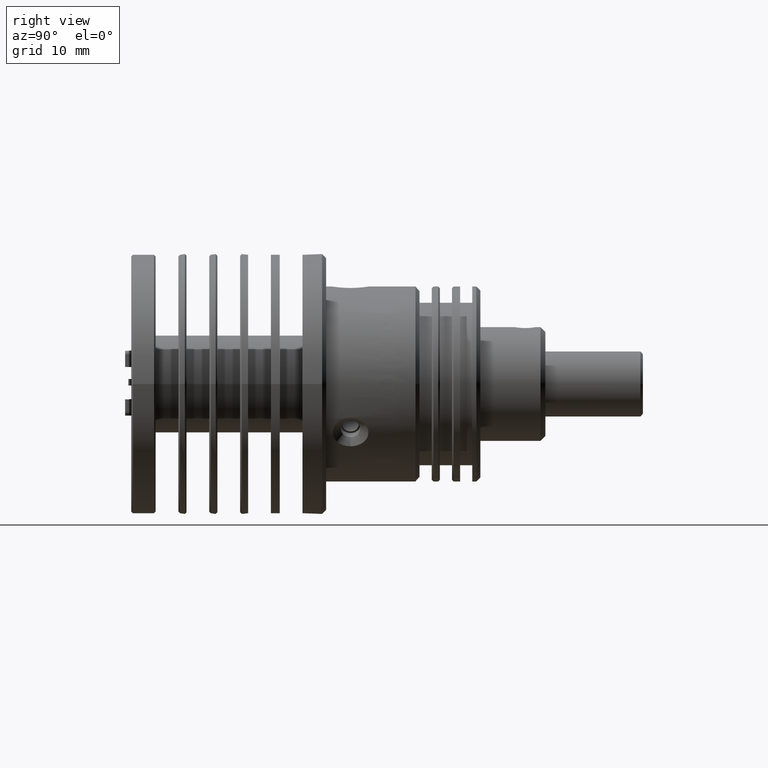
[diagram: clean part render]
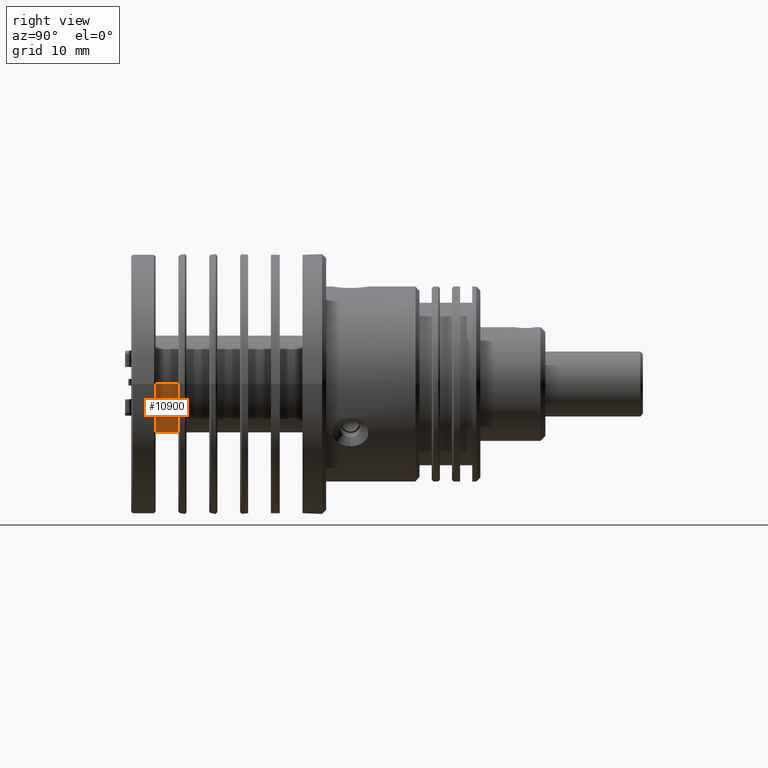
[diagram: same view with one face highlighted and labeled with its STEP entity id]
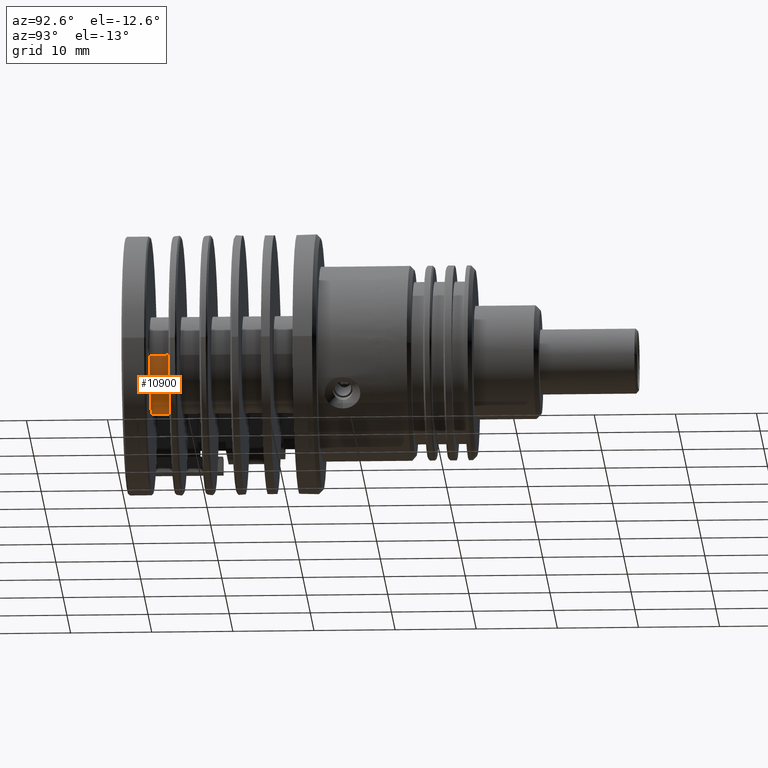
[diagram: same view with one face highlighted and labeled with its STEP entity id]
A machine part, right view. The second image highlights one B-rep face of the part: STEP entity #10900.
A second angle (auxiliary view) of the same face is appended — the face is thin or edge-on in the first view.
In plain terms, the highlighted cylindrical surface (partial cylindrical patch) has radius 6 mm, axis along (-0, -1, 0).
Its self-contained STEP definition (entity closure, byte-faithful):
#990 = EDGE_CURVE ( 'NONE', #1038, #12281, #10768, .T. ) ;
#1038 = VERTEX_POINT ( 'NONE', #14509 ) ;
#1824 = ORIENTED_EDGE ( 'NONE', *, *, #4224, .F. ) ;
#1902 = FACE_OUTER_BOUND ( 'NONE', #14687, .T. ) ;
#2100 = EDGE_CURVE ( 'NONE', #1038, #8052, #17874, .T. ) ;
#4224 = EDGE_CURVE ( 'NONE', #8052, #11174, #8521, .T. ) ;
#4341 = CARTESIAN_POINT ( 'NONE',  ( -3.425066212364307600, -39.71493551001260200, -9.174035921659418900 ) ) ;
#4502 = DIRECTION ( 'NONE',  ( 1.156482317317871500E-016, 1.000000000000000000, -0.0000000000000000000 ) ) ;
#6112 = DIRECTION ( 'NONE',  ( -1.000000000000000000, 0.0000000000000000000, 0.0000000000000000000 ) ) ;
#7373 = DIRECTION ( 'NONE',  ( -1.156482317317871500E-016, -1.000000000000000000, 0.0000000000000000000 ) ) ;
#8052 = VERTEX_POINT ( 'NONE', #19607 ) ;
#8521 = LINE ( 'NONE', #4341, #12102 ) ;
#10175 = CARTESIAN_POINT ( 'NONE',  ( 8.574933787635693200, -39.71493551001260200, -9.174035921659418900 ) ) ;
#10768 = LINE ( 'NONE', #10175, #14852 ) ;
#10900 = ADVANCED_FACE ( 'NONE', ( #1902 ), #16313, .T. ) ;
#11174 = VERTEX_POINT ( 'NONE', #13349 ) ;
#11567 = ORIENTED_EDGE ( 'NONE', *, *, #990, .T. ) ;
#11771 = DIRECTION ( 'NONE',  ( -1.156482317317871500E-016, -1.000000000000000000, 0.0000000000000000000 ) ) ;
#12102 = VECTOR ( 'NONE', #7373, 1000.000000000000000 ) ;
#12281 = VERTEX_POINT ( 'NONE', #18992 ) ;
#13349 = CARTESIAN_POINT ( 'NONE',  ( -3.425066212364307200, -36.71493551001260200, -9.174035921659418900 ) ) ;
#13593 = EDGE_CURVE ( 'NONE', #12281, #11174, #14960, .T. ) ;
#13690 = DIRECTION ( 'NONE',  ( -1.000000000000000000, 0.0000000000000000000, 0.0000000000000000000 ) ) ;
#13701 = CARTESIAN_POINT ( 'NONE',  ( 2.574933787635692800, -36.71493551001260200, -9.174035921659418900 ) ) ;
#14168 = AXIS2_PLACEMENT_3D ( 'NONE', #14376, #14245, #13690 ) ;
#14245 = DIRECTION ( 'NONE',  ( 1.156482317317871500E-016, 1.000000000000000000, -0.0000000000000000000 ) ) ;
#14318 = ORIENTED_EDGE ( 'NONE', *, *, #2100, .F. ) ;
#14376 = CARTESIAN_POINT ( 'NONE',  ( 2.574933787635693200, -33.91493551001260400, -9.174035921659418900 ) ) ;
#14509 = CARTESIAN_POINT ( 'NONE',  ( 8.574933787635695000, -33.91493551001260400, -9.174035921659418900 ) ) ;
#14687 = EDGE_LOOP ( 'NONE', ( #14318, #11567, #16231, #1824 ) ) ;
#14852 = VECTOR ( 'NONE', #11771, 1000.000000000000000 ) ;
#14960 = CIRCLE ( 'NONE', #18693, 6.000000000000000000 ) ;
#15245 = DIRECTION ( 'NONE',  ( -1.000000000000000000, 0.0000000000000000000, 0.0000000000000000000 ) ) ;
#15293 = CARTESIAN_POINT ( 'NONE',  ( 2.574933787635692400, -39.71493551001260200, -9.174035921659418900 ) ) ;
#16231 = ORIENTED_EDGE ( 'NONE', *, *, #13593, .T. ) ;
#16306 = AXIS2_PLACEMENT_3D ( 'NONE', #15293, #19871, #6112 ) ;
#16313 = CYLINDRICAL_SURFACE ( 'NONE', #16306, 6.000000000000000000 ) ;
#17874 = CIRCLE ( 'NONE', #14168, 6.000000000000000000 ) ;
#18693 = AXIS2_PLACEMENT_3D ( 'NONE', #13701, #4502, #15245 ) ;
#18992 = CARTESIAN_POINT ( 'NONE',  ( 8.574933787635693200, -36.71493551001260200, -9.174035921659418900 ) ) ;
#19607 = CARTESIAN_POINT ( 'NONE',  ( -3.425066212364306800, -33.91493551001260400, -9.174035921659418900 ) ) ;
#19871 = DIRECTION ( 'NONE',  ( -1.156482317317871500E-016, -1.000000000000000000, 0.0000000000000000000 ) ) ;